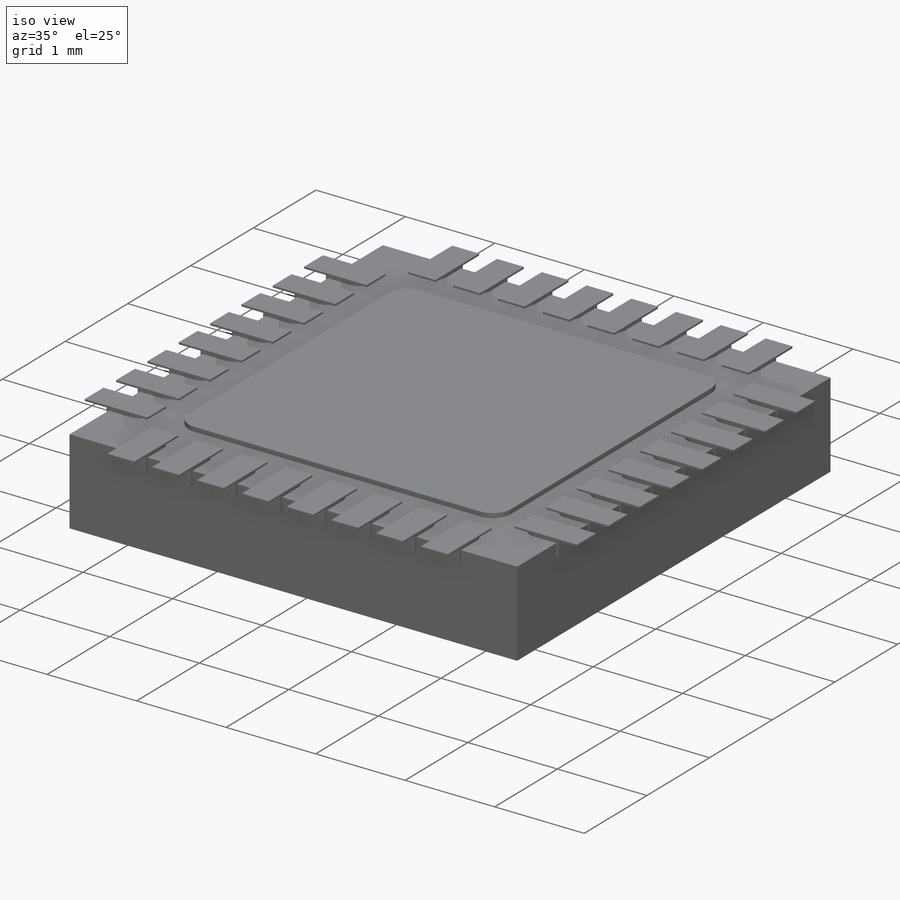
[diagram: iso view]
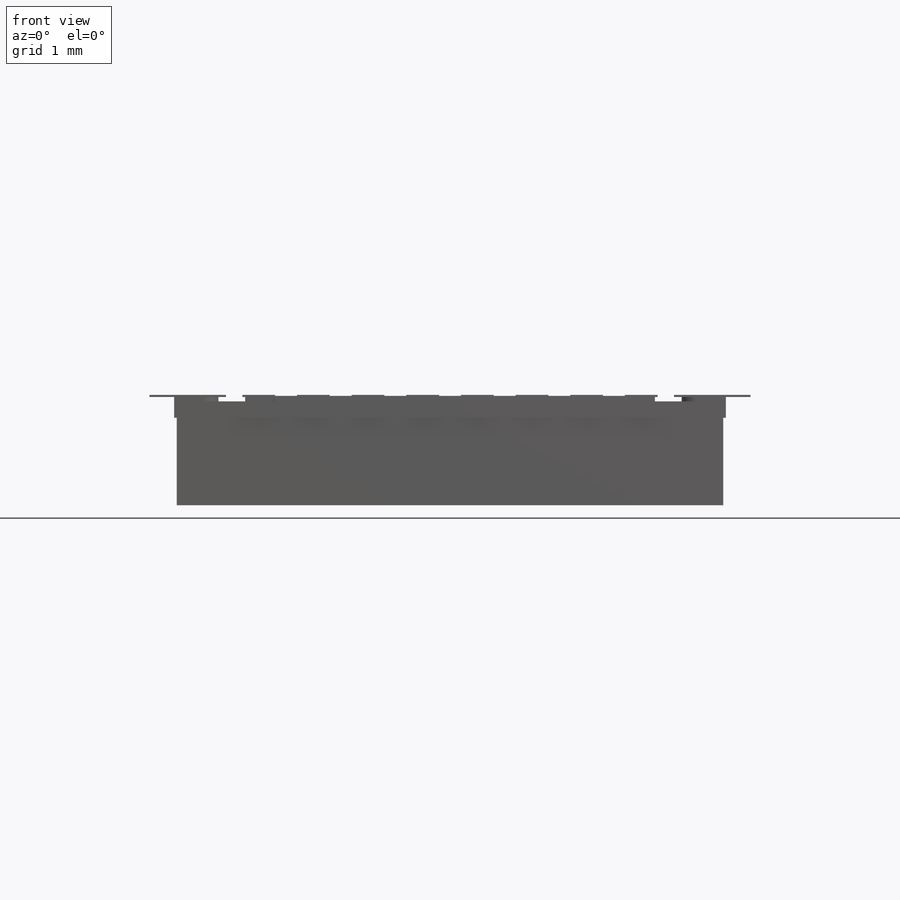
[diagram: front view]
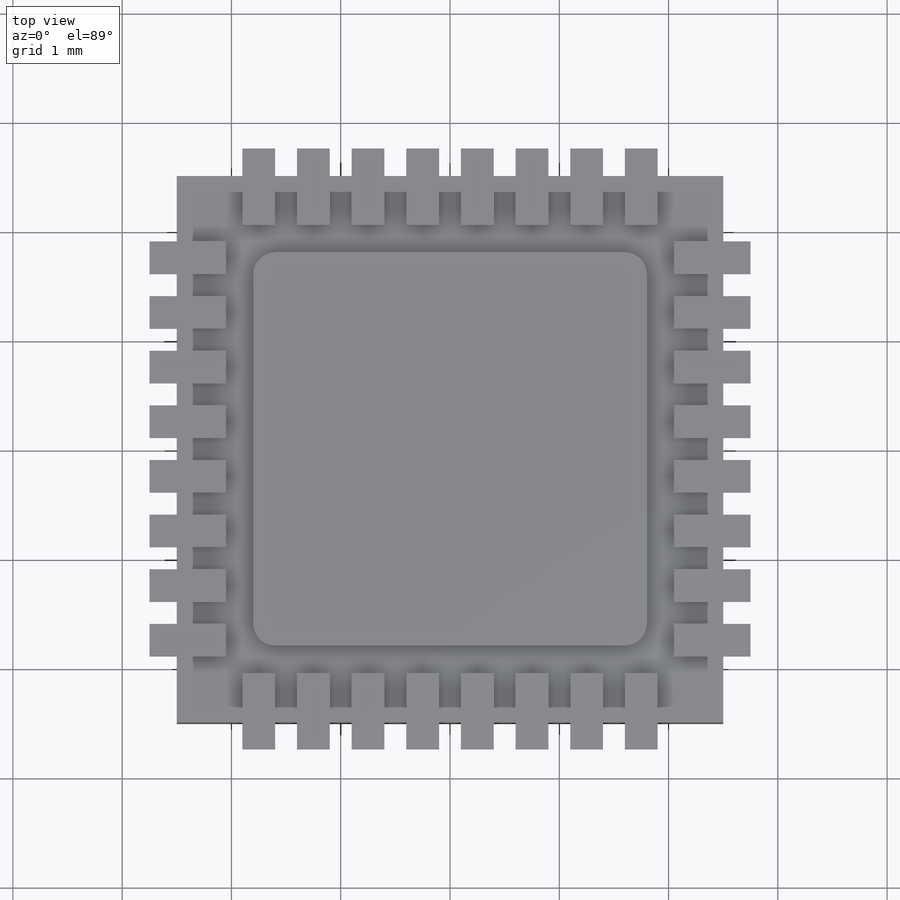
[diagram: top view]
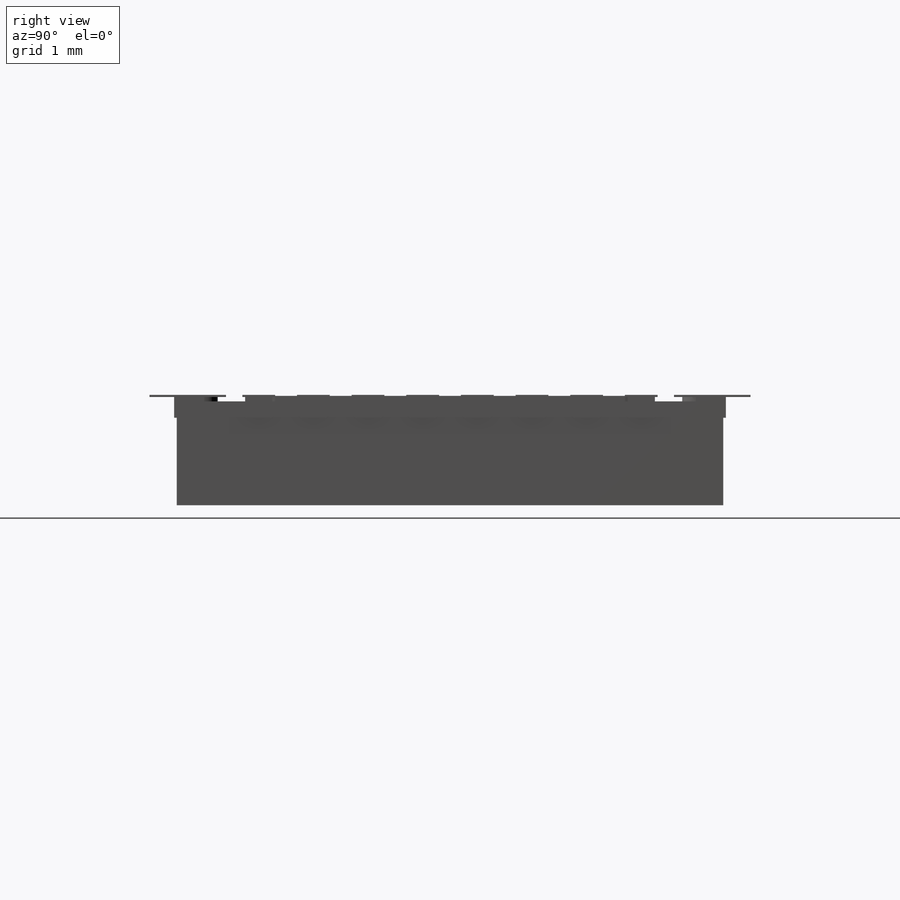
[diagram: right view]
SOLIDWORKS PART (.sldprt)
format: sldprt  version: not decoded by parser v0  size: 1,684,480 bytes
history: native  units: mm
features: sketch x7, extrude x3, cut_extrude x3, material x1, plane x1 (+13 scaffold rows collapsed)
feature tree (28):
  scaffold x13  (default folders/planes/origin — collapsed)
  material  "Material <not specified>"
  sketch  "Sketch1"  dims[D1=5.05mm D2=2.525mm D3=2.525mm]
  sketch  "Sketch2"  dims[c1.D5=0.2mm c1.D1=3.6mm c1.D2=1.8mm c1.D3=1.8mm c1.D4=1.8mm c1.D6=0.25mm c1.D7=0.275mm c1.D8=1.75mm c1.D10=0.5mm c1.D11=~0.343537mm c1.D12=~0.343537mm c2.D11=~0.215342mm c2.D12=~0.349931mm c3.D11=0.275mm c3.D12=~1.518181mm c3.D13=~1.518181mm c4.D11=1.75mm c4.D12=0.25mm c4.D13=0.28mm c4.D15=0.5mm c4.D7=0.275mm c5.D13=0.28mm c5.D9=8.0 c5.D14=8.0]
  sketch  "Sketch3"  dims[D1=5.0mm D2=2.5mm D3=2.5mm D4=2.5mm]
  extrude  "Boss-Extrude2"  Depth=0.95mm
  extrude  "Boss-Extrude3"  Depth=0.05mm
  plane  "Plane1"  Offset=0.06mm
  sketch  "Sketch4"  dims[D1=0.3mm D2=0.7mm D3=5.5mm D4=2.75mm D5=1.9mm D7=0.5mm D8=2.75mm D9=5.5mm D10=1.9mm D11=0.3mm D12=0.7mm D14=0.5mm D6=8.0 D13=8.0]
  extrude  "Boss-Extrude4"  Depth=0.02mm
  sketch  "Sketch5"  dims[c1.D25=0.1mm c1.D26=0.03mm c1.D28=0.01mm c1.D33=0.015mm c1.D1=0.045mm c1.D2=0.045mm c1.D3=0.045mm c1.D4=0.055mm c1.D5=61.0deg c1.D6=0.075mm c1.D7=0.055mm c1.D8=0.185mm c1.D9=0.185mm c1.D10=0.185mm c1.D11=0.21mm c1.D12=0.05mm c1.D13=0.05mm c1.D14=0.05mm c1.D15=0.05mm c1.D16=0.05mm c1.D17=0.05mm c1.D18=0.53mm c1.D19=0.2mm c1.D20=0.19mm c1.D21=0.19mm c1.D22=0.19mm c1.D23=0.41mm c1.D24=2.4mm c1.D27=0.07mm c1.D29=0.19mm c1.D30=0.19mm c1.D31=0.05mm c1.D32=0.28mm c1.D34=0.6mm c1.D35=0.65mm c1.D36=0.175mm c2.D34=0.75mm c2.D35=1.2mm c2.D37=1.3mm c2.D38=1.3mm]
  sketch  "Sketch6"  dims[D1=1.3mm D2=0.1mm D3=0.9mm D4=0.9mm]
  cut_extrude  "Cut-Extrude1"  Depth=0.05mm
  cut_extrude  "Cut-Extrude2"  Depth=0.05mm
  sketch  "Sketch7"  dims[D1=0.6mm D2=1.75mm D3=1.75mm]
  cut_extrude  "Cut-Extrude3"  Depth=0.1mm
decode coverage: 13 of 13 modeling features carry decoded parameters
note: ~ marks probable driven/reference dimensions
note: suppression state not decoded; provenance and decode notes live in map.json
